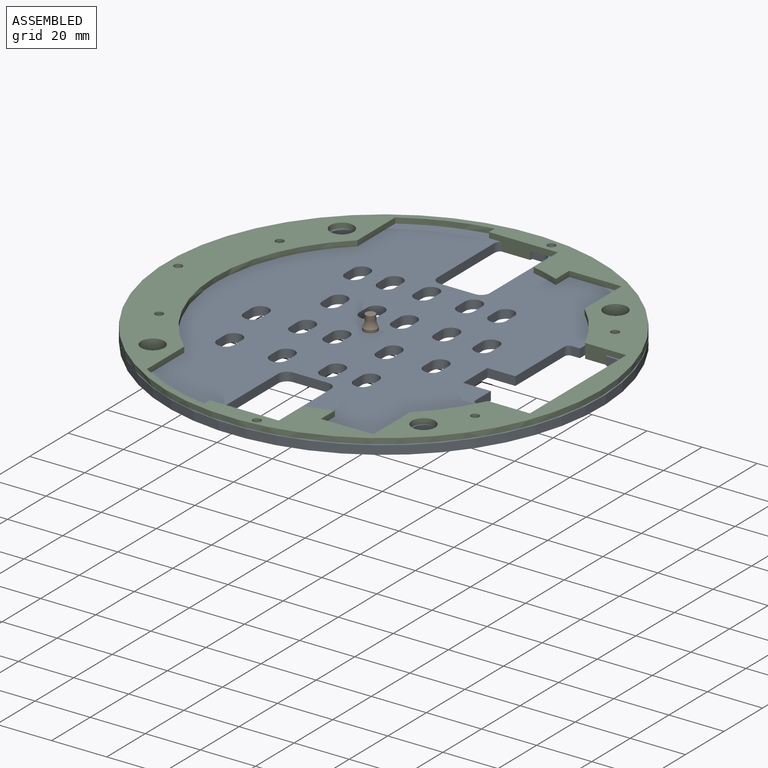
[diagram: assembled view]
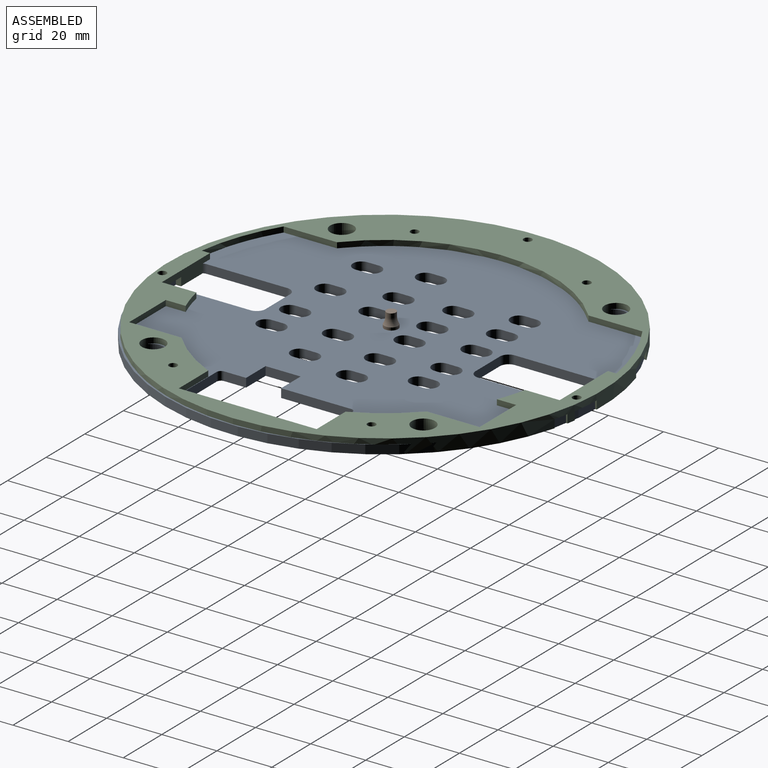
[diagram: assembled view, second angle]
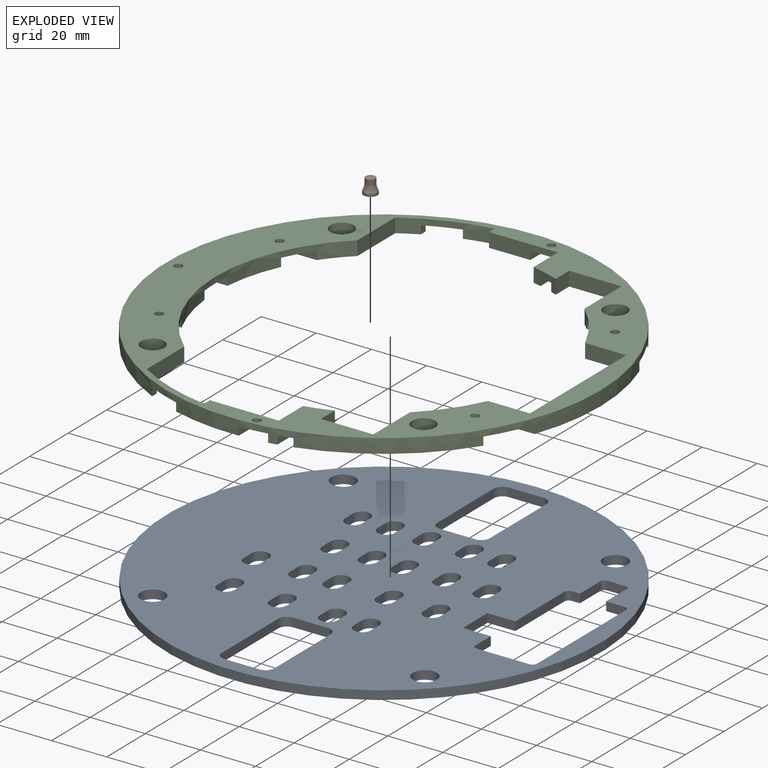
[diagram: exploded view]
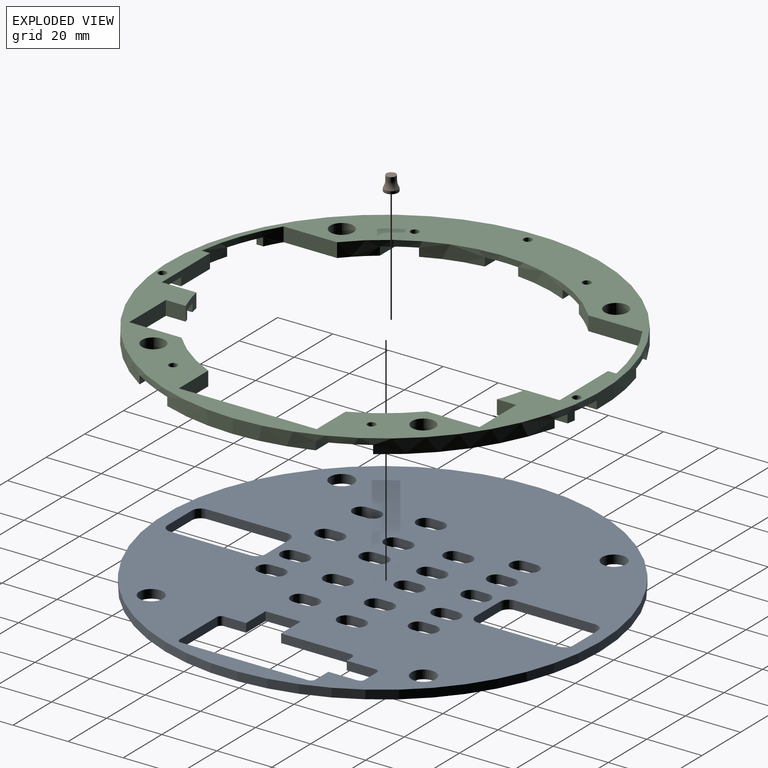
[diagram: exploded view, second angle]
ASSEMBLY  parts=3 mates=2
PART A: 117 faces, bbox 157.5x3.2x157.5 mm
  f0: plane 7.99x3.18mm, normal (1,0,0), area 25.4mm2, adj f2,f3,f13,f116
  f1: plane 3.18x2.93mm, normal (0,0,-1), area 9.3mm2, adj f2,f3,f11,f33
  f2: plane 157.48x157.48mm, normal (0,1,0), area 15489.2mm2, adj f0,f1,f4,f5,f6,f7,f8,f9
  f3: plane 157.48x157.48mm, normal (0,-1,0), area 15489.2mm2, adj f0,f1,f4,f5,f6,f7,f8,f9
  f4: cylinder r=78.74mm len=157.48mm, axis (0,-1,0), area 1570.8mm2, adj f2,f3
  f5: cylinder r=4.36mm len=8.71mm, axis (0,1,0), area 86.9mm2, adj f2,f3
  f6: cylinder r=4.36mm len=8.71mm, axis (0,1,0), area 86.9mm2, adj f2,f3
  f7: cylinder r=4.36mm len=8.71mm, axis (0,1,0), area 86.9mm2, adj f2,f3
  f8: cylinder r=4.36mm len=8.71mm, axis (0,1,0), area 86.9mm2, adj f2,f3
  f9: cylinder r=1.59mm len=3.18mm, axis (0,1,0), area 7.9mm2, adj f2,f3,f10,f16
  f10: plane 6.72x3.18mm, normal (0,0,-1), area 21.3mm2, adj f2,f3,f9,f34
  f11: cylinder r=1.59mm len=3.18mm, axis (0,1,0), area 7.9mm2, adj f1,f2,f3,f12
  f12: plane 25.41x3.18mm, normal (1,0,0), area 80.7mm2, adj f2,f3,f11,f115
  f13: cylinder r=1.59mm len=3.18mm, axis (0,1,0), area 7.9mm2, adj f0,f2,f3,f14
  f14: plane 19.18x3.18mm, normal (0,0,1), area 60.9mm2, adj f2,f3,f13,f15
  f15: cylinder r=1.59mm len=3.18mm, axis (0,1,0), area 7.9mm2, adj f2,f3,f14,f16
  f16: plane 46.1x3.18mm, normal (-1,0,0), area 146.4mm2, adj f2,f3,f9,f15
  f17: plane 29.21x3.18mm, normal (-1,0,0), area 92.7mm2, adj f2,f3,f22,f24
  f18: plane 12.7x3.18mm, normal (0,0,-1), area 40.3mm2, adj f2,f3,f21,f22
  f19: plane 29.21x3.18mm, normal (1,0,0), area 92.7mm2, adj f2,f3,f21,f23
  f20: plane 12.7x3.18mm, normal (0,0,1), area 40.3mm2, adj f2,f3,f23,f24
  f21: cylinder r=3.17mm len=3.18mm, axis (0,-1,0), area 15.8mm2, adj f2,f3,f18,f19
  f22: cylinder r=3.17mm len=3.18mm, axis (0,-1,0), area 15.8mm2, adj f2,f3,f17,f18
  f23: cylinder r=3.17mm len=3.18mm, axis (0,-1,0), area 15.8mm2, adj f2,f3,f19,f20
  f24: cylinder r=3.17mm len=3.18mm, axis (0,-1,0), area 15.8mm2, adj f2,f3,f17,f20
  f25: plane 29.21x3.18mm, normal (-1,0,0), area 92.7mm2, adj f2,f3,f30,f32
  f26: plane 12.7x3.18mm, normal (0,0,-1), area 40.3mm2, adj f2,f3,f31,f32
  f27: plane 29.21x3.18mm, normal (1,0,0), area 92.7mm2, adj f2,f3,f29,f31
  f28: plane 12.7x3.18mm, normal (0,0,1), area 40.3mm2, adj f2,f3,f29,f30
  f29: cylinder r=3.17mm len=3.18mm, axis (0,-1,0), area 15.8mm2, adj f2,f3,f27,f28
  f30: cylinder r=3.17mm len=3.18mm, axis (0,-1,0), area 15.8mm2, adj f2,f3,f25,f28
  f31: cylinder r=3.17mm len=3.18mm, axis (0,-1,0), area 15.8mm2, adj f2,f3,f26,f27
  f32: cylinder r=3.17mm len=3.18mm, axis (0,-1,0), area 15.8mm2, adj f2,f3,f25,f26
  f33: plane 10.54x3.18mm, normal (1,0,0), area 33.5mm2, adj f1,f2,f3,f37
  f34: plane 10.54x3.18mm, normal (-1,0,0), area 33.5mm2, adj f2,f3,f10,f35
  f35: cylinder r=1.52mm len=3.18mm, axis (0,1,0), area 7.6mm2, adj f2,f3,f34,f36
  f36: plane 6.48x3.18mm, normal (0,0,-1), area 20.6mm2, adj f2,f3,f35,f37
  f37: cylinder r=1.52mm len=3.18mm, axis (0,1,0), area 7.6mm2, adj f2,f3,f33,f36
  f38: cylinder r=3.12mm len=6.25mm, axis (0,1,0), area 31.2mm2, adj f2,f3,f39,f41
  f39: plane 4.11x3.18mm, normal (-1,0,0), area 13.1mm2, adj f2,f3,f38,f40
  f40: cylinder r=3.12mm len=6.25mm, axis (0,1,0), area 31.2mm2, adj f2,f3,f39,f41
  f41: plane 4.11x3.18mm, normal (1,0,0), area 13.1mm2, adj f2,f3,f38,f40
  f42: cylinder r=3.12mm len=6.25mm, axis (0,1,0), area 31.2mm2, adj f2,f3,f43,f45
  f43: plane 4.11x3.18mm, normal (-1,0,0), area 13.1mm2, adj f2,f3,f42,f44
  f44: cylinder r=3.12mm len=6.25mm, axis (0,1,0), area 31.2mm2, adj f2,f3,f43,f45
  f45: plane 4.11x3.18mm, normal (1,0,0), area 13.1mm2, adj f2,f3,f42,f44
  f46: cylinder r=3.12mm len=6.25mm, axis (0,1,0), area 31.2mm2, adj f2,f3,f47,f49
  f47: plane 4.12x3.18mm, normal (-1,0,0), area 13.1mm2, adj f2,f3,f46,f48
  f48: cylinder r=3.12mm len=6.25mm, axis (0,1,0), area 31.2mm2, adj f2,f3,f47,f49
  f49: plane 4.12x3.18mm, normal (1,0,0), area 13.1mm2, adj f2,f3,f46,f48
  f50: cylinder r=3.12mm len=6.25mm, axis (0,1,0), area 31.2mm2, adj f2,f3,f51,f53
  f51: plane 4.12x3.18mm, normal (-1,0,0), area 13.1mm2, adj f2,f3,f50,f52
  f52: cylinder r=3.12mm len=6.25mm, axis (0,1,0), area 31.2mm2, adj f2,f3,f51,f53
  f53: plane 4.12x3.18mm, normal (1,0,0), area 13.1mm2, adj f2,f3,f50,f52
  f54: cylinder r=3.12mm len=6.25mm, axis (0,1,0), area 31.2mm2, adj f2,f3,f55,f57
  f55: plane 4.11x3.18mm, normal (-1,0,0), area 13.1mm2, adj f2,f3,f54,f56
  f56: cylinder r=3.12mm len=6.25mm, axis (0,1,0), area 31.2mm2, adj f2,f3,f55,f57
  f57: plane 4.11x3.18mm, normal (1,0,0), area 13.1mm2, adj f2,f3,f54,f56
  f58: cylinder r=3.12mm len=6.25mm, axis (0,1,0), area 31.2mm2, adj f2,f3,f59,f61
  f59: plane 4.11x3.18mm, normal (-1,0,0), area 13.1mm2, adj f2,f3,f58,f60
  f60: cylinder r=3.12mm len=6.25mm, axis (0,1,0), area 31.2mm2, adj f2,f3,f59,f61
  f61: plane 4.11x3.18mm, normal (1,0,0), area 13.1mm2, adj f2,f3,f58,f60
  f62: cylinder r=3.12mm len=6.25mm, axis (0,1,0), area 31.2mm2, adj f2,f3,f63,f65
  f63: plane 4.11x3.18mm, normal (-1,0,0), area 13.1mm2, adj f2,f3,f62,f64
  f64: cylinder r=3.12mm len=6.25mm, axis (0,1,0), area 31.2mm2, adj f2,f3,f63,f65
  f65: plane 4.11x3.18mm, normal (1,0,0), area 13.1mm2, adj f2,f3,f62,f64
  f66: cylinder r=3.12mm len=6.25mm, axis (0,1,0), area 31.2mm2, adj f2,f3,f67,f69
  f67: plane 4.12x3.18mm, normal (-1,0,0), area 13.1mm2, adj f2,f3,f66,f68
  f68: cylinder r=3.12mm len=6.25mm, axis (0,1,0), area 31.2mm2, adj f2,f3,f67,f69
  f69: plane 4.12x3.18mm, normal (1,0,0), area 13.1mm2, adj f2,f3,f66,f68
  f70: cylinder r=3.12mm len=6.25mm, axis (0,1,0), area 31.2mm2, adj f2,f3,f71,f73
  f71: plane 4.12x3.18mm, normal (-1,0,0), area 13.1mm2, adj f2,f3,f70,f72
  f72: cylinder r=3.12mm len=6.25mm, axis (0,1,0), area 31.2mm2, adj f2,f3,f71,f73
  f73: plane 4.12x3.18mm, normal (1,0,0), area 13.1mm2, adj f2,f3,f70,f72
  f74: cylinder r=3.12mm len=6.25mm, axis (0,1,0), area 31.2mm2, adj f2,f3,f75,f77
  f75: plane 4.12x3.18mm, normal (-1,0,0), area 13.1mm2, adj f2,f3,f74,f76
  f76: cylinder r=3.12mm len=6.25mm, axis (0,1,0), area 31.2mm2, adj f2,f3,f75,f77
  f77: plane 4.12x3.18mm, normal (1,0,0), area 13.1mm2, adj f2,f3,f74,f76
  f78: cylinder r=3.12mm len=6.25mm, axis (0,1,0), area 31.2mm2, adj f2,f3,f79,f81
  f79: plane 4.11x3.18mm, normal (-1,0,0), area 13.1mm2, adj f2,f3,f78,f80
  f80: cylinder r=3.12mm len=6.25mm, axis (0,1,0), area 31.2mm2, adj f2,f3,f79,f81
  f81: plane 4.11x3.18mm, normal (1,0,0), area 13.1mm2, adj f2,f3,f78,f80
  f82: cylinder r=3.12mm len=6.25mm, axis (0,1,0), area 31.2mm2, adj f2,f3,f83,f85
  f83: plane 4.11x3.18mm, normal (-1,0,0), area 13.1mm2, adj f2,f3,f82,f84
  f84: cylinder r=3.12mm len=6.25mm, axis (0,1,0), area 31.2mm2, adj f2,f3,f83,f85
  f85: plane 4.11x3.18mm, normal (1,0,0), area 13.1mm2, adj f2,f3,f82,f84
  f86: cylinder r=3.12mm len=6.25mm, axis (0,1,0), area 31.2mm2, adj f2,f3,f87,f89
  f87: plane 4.12x3.18mm, normal (-1,0,0), area 13.1mm2, adj f2,f3,f86,f88
  f88: cylinder r=3.12mm len=6.25mm, axis (0,1,0), area 31.2mm2, adj f2,f3,f87,f89
  f89: plane 4.12x3.18mm, normal (1,0,0), area 13.1mm2, adj f2,f3,f86,f88
  f90: cylinder r=3.12mm len=6.25mm, axis (0,1,0), area 31.2mm2, adj f2,f3,f91,f93
  f91: plane 4.11x3.18mm, normal (-1,0,0), area 13.1mm2, adj f2,f3,f90,f92
  f92: cylinder r=3.12mm len=6.25mm, axis (0,1,0), area 31.2mm2, adj f2,f3,f91,f93
  f93: plane 4.11x3.18mm, normal (1,0,0), area 13.1mm2, adj f2,f3,f90,f92
  f94: cylinder r=3.12mm len=6.25mm, axis (0,1,0), area 31.2mm2, adj f2,f3,f95,f97
  f95: plane 4.11x3.18mm, normal (-1,0,0), area 13.1mm2, adj f2,f3,f94,f96
  f96: cylinder r=3.12mm len=6.25mm, axis (0,1,0), area 31.2mm2, adj f2,f3,f95,f97
  f97: plane 4.11x3.18mm, normal (1,0,0), area 13.1mm2, adj f2,f3,f94,f96
  f98: cylinder r=3.12mm len=6.25mm, axis (0,1,0), area 31.2mm2, adj f2,f3,f99,f101
  f99: plane 4.12x3.18mm, normal (-1,0,0), area 13.1mm2, adj f2,f3,f98,f100
  f100: cylinder r=3.12mm len=6.25mm, axis (0,1,0), area 31.2mm2, adj f2,f3,f99,f101
  f101: plane 4.12x3.18mm, normal (1,0,0), area 13.1mm2, adj f2,f3,f98,f100
  f102: cylinder r=3.12mm len=6.25mm, axis (0,1,0), area 31.2mm2, adj f2,f3,f103,f105
  f103: plane 4.12x3.18mm, normal (-1,0,0), area 13.1mm2, adj f2,f3,f102,f104
  f104: cylinder r=3.12mm len=6.25mm, axis (0,1,0), area 31.2mm2, adj f2,f3,f103,f105
  f105: plane 4.12x3.18mm, normal (1,0,0), area 13.1mm2, adj f2,f3,f102,f104
  f106: cylinder r=3.12mm len=6.25mm, axis (0,1,0), area 31.2mm2, adj f2,f3,f107,f109
  f107: plane 4.11x3.18mm, normal (-1,0,0), area 13.1mm2, adj f2,f3,f106,f108
  f108: cylinder r=3.12mm len=6.25mm, axis (0,1,0), area 31.2mm2, adj f2,f3,f107,f109
  f109: plane 4.11x3.18mm, normal (1,0,0), area 13.1mm2, adj f2,f3,f106,f108
  f110: cylinder r=3.12mm len=6.25mm, axis (0,1,0), area 31.2mm2, adj f2,f3,f111,f113
  f111: plane 4.12x3.18mm, normal (-1,0,0), area 13.1mm2, adj f2,f3,f110,f112
  f112: cylinder r=3.12mm len=6.25mm, axis (0,1,0), area 31.2mm2, adj f2,f3,f111,f113
  f113: plane 4.12x3.18mm, normal (1,0,0), area 13.1mm2, adj f2,f3,f110,f112
  f114: plane 12.7x3.18mm, normal (1,0,0), area 40.3mm2, adj f2,f3,f115,f116
  f115: plane 10.11x3.18mm, normal (0,0,-1), area 32.1mm2, adj f2,f3,f12,f114
  f116: plane 10.11x3.18mm, normal (0,0,1), area 32.1mm2, adj f0,f2,f3,f114
PART B: 5 faces, bbox 6.9x6.9x7.2 mm
  f0: cylinder r=2.5mm len=5mm, axis (0,0,-1), area 15.7mm2, adj f1,f4
  f1: plane 5x5mm, normal (0,0,-1), area 19.6mm2, adj f0
  f2: cylinder r=1.75mm len=3.5mm, axis (0,0,-1), area 17.9mm2, adj f3,f4
  f3: plane 3.5x3.5mm, normal (0,0,1), area 9.6mm2, adj f2
  f4: torus R=6.75mm, axis (0,0,-1), area 34.9mm2, adj f0,f2
PART C: 79 faces, bbox 157.5x157.5x5.2 mm
  f0: cylinder r=61mm len=90.78mm, axis (0,0,-1), area 423.3mm2, adj f13,f14,f15,f16,f17,f33,f39,f47
  f1: cylinder r=78.33mm len=28.73mm, axis (0,0,-1), area 120.7mm2, adj f12,f16,f17,f18,f39,f44,f45,f46
  f2: cylinder r=61mm len=10.16mm, axis (0,0,-1), area 39.3mm2, adj f8,f9,f20,f21,f39,f63,f64,f65
  f3: cylinder r=61mm len=19.71mm, axis (0,0,-1), area 68.8mm2, adj f7,f8,f23,f24,f39,f66,f67,f68
  f4: cylinder r=61mm len=19.81mm, axis (0,0,-1), area 70.2mm2, adj f7,f11,f26,f27,f39,f69,f70,f71
  f5: cylinder r=61mm len=9.59mm, axis (0,0,-1), area 36.1mm2, adj f10,f11,f29,f30,f39,f60,f61,f62
  f6: cylinder r=73.76mm len=27.9mm, axis (0,0,-1), area 115.8mm2, adj f13,f32,f33,f39,f40,f41,f42,f43
  f7: plane 54x24.18mm, normal (0,0,-1), area 409.4mm2, adj f3,f4,f24,f25,f26,f38,f67,f70
  f8: plane 45.83x33.76mm, normal (0,0,-1), area 481.4mm2, adj f2,f3,f21,f22,f23,f37,f38,f64
  f9: plane 18.76x3mm, normal (0,0,-1), area 54.4mm2, adj f2,f20,f38,f63
  f10: plane 18.74x3mm, normal (0,0,-1), area 54.3mm2, adj f5,f30,f38,f60
  f11: plane 45.61x33.25mm, normal (0,0,-1), area 470.6mm2, adj f4,f5,f27,f28,f29,f34,f38,f61
  f12: plane 25x6.5mm, normal (0,0,-1), area 118.4mm2, adj f1,f18,f19,f38,f45,f56
  f13: plane 35.42x34.56mm, normal (0,0,-1), area 464.2mm2, adj f0,f6,f33,f35,f38,f41,f54
  f14: plane 23.42x20mm, normal (0,0,-1), area 366.5mm2, adj f0,f38,f50,f53
  f15: plane 23.24x20mm, normal (0,0,-1), area 366mm2, adj f0,f38,f48,f51
  f16: plane 35.77x35.06mm, normal (0,0,-1), area 460.1mm2, adj f0,f1,f17,f36,f38,f44,f47
  f17: plane 19.59x5.17mm, normal (1,0,0), area 101.3mm2, adj f0,f1,f16,f39
  f18: plane 5.17x3.02mm, normal (-1,0,0), area 15.6mm2, adj f1,f12,f19,f39
  f19: plane 25x5.17mm, normal (0,-1,0), area 99.2mm2, adj f12,f18,f20,f39,f56,f57
  f20: plane 18.04x5.17mm, normal (-1,0,0), area 81.4mm2, adj f2,f9,f19,f38,f39,f57
  f21: plane 7x5.17mm, normal (1,0,0), area 36.2mm2, adj f2,f8,f22,f39
  f22: plane 19x5.17mm, normal (0,-1,0), area 98.2mm2, adj f8,f21,f23,f39
  f23: plane 19.15x5.17mm, normal (-1,0,0), area 99mm2, adj f3,f8,f22,f39
  f24: plane 14.98x5.17mm, normal (0,-1,0), area 77.4mm2, adj f3,f7,f25,f39
  f25: plane 50x5.17mm, normal (-1,0,0), area 258.5mm2, adj f7,f24,f26,f39
  f26: plane 15.22x5.17mm, normal (0,1,0), area 78.7mm2, adj f4,f7,f25,f39
  f27: plane 18.98x5.17mm, normal (-1,0,0), area 98.1mm2, adj f4,f11,f28,f39
  f28: plane 19x5.17mm, normal (0,1,0), area 98.2mm2, adj f11,f27,f29,f39
  f29: plane 7.2x5.17mm, normal (1,0,0), area 37.2mm2, adj f5,f11,f28,f39
  f30: plane 18.04x5.17mm, normal (-1,0,0), area 81.3mm2, adj f5,f10,f31,f38,f39,f59
  f31: plane 25x5.17mm, normal (0,1,0), area 99.2mm2, adj f30,f32,f39,f40,f58,f59
  f32: plane 5.17x3mm, normal (-1,0,0), area 15.5mm2, adj f6,f31,f39,f40
  f33: plane 19.38x5.17mm, normal (1,0,0), area 100.2mm2, adj f0,f6,f13,f39
  f34: cylinder r=4.21mm len=8.42mm, axis (0,0,-1), area 136.7mm2, adj f11,f39
  f35: cylinder r=4.21mm len=8.42mm, axis (0,0,-1), area 136.7mm2, adj f13,f39
  f36: cylinder r=4.21mm len=8.42mm, axis (0,0,-1), area 136.7mm2, adj f16,f39
  f37: cylinder r=4.21mm len=8.42mm, axis (0,0,-1), area 136.7mm2, adj f8,f39
  f38: cylinder r=78.74mm len=157.48mm, axis (0,0,-1), area 2183.9mm2, adj f7,f8,f9,f10,f11,f12,f13,f14
  f39: plane 157.48x157.48mm, normal (0,0,1), area 4928.7mm2, adj f0,f1,f2,f3,f4,f5,f6,f17
  f40: plane 25x6.5mm, normal (0,0,-1), area 117.8mm2, adj f6,f31,f32,f38,f42,f58
  f41: plane 3x2.42mm, normal (1,0,0), area 7.3mm2, adj f6,f13,f38,f43
  f42: plane 3x2.41mm, normal (-1,0,0), area 7.2mm2, adj f6,f38,f40,f43
  f43: plane 12x7.1mm, normal (0,0,-1), area 28.8mm2, adj f6,f38,f41,f42
  f44: plane 3x2.49mm, normal (1,0,0), area 7.5mm2, adj f1,f16,f38,f46
  f45: plane 3x2.49mm, normal (-1,0,0), area 7.5mm2, adj f1,f12,f38,f46
  f46: plane 12x7.15mm, normal (0,0,-1), area 29.9mm2, adj f1,f38,f44,f45
  f47: plane 20.74x3mm, normal (0,-1,0), area 62.2mm2, adj f0,f16,f38,f49
  f48: plane 19.12x3mm, normal (0,1,0), area 57.3mm2, adj f0,f15,f38,f49
  f49: plane 25x10mm, normal (0,0,-1), area 191.4mm2, adj f0,f38,f47,f48,f76
  f50: plane 17.81x3mm, normal (0,1,0), area 53.4mm2, adj f0,f14,f38,f52
  f51: plane 17.8x3mm, normal (0,-1,0), area 53.4mm2, adj f0,f15,f38,f52
  f52: plane 18.06x12mm, normal (0,0,-1), area 206.1mm2, adj f0,f38,f50,f51,f78
  f53: plane 19.17x3mm, normal (0,-1,0), area 57.5mm2, adj f0,f14,f38,f55
  f54: plane 20.83x3mm, normal (0,1,0), area 62.5mm2, adj f0,f13,f38,f55
  f55: plane 25.16x10mm, normal (0,0,-1), area 192.1mm2, adj f0,f38,f53,f54,f77
  f56: plane 6.46x3mm, normal (1,0,0), area 19.4mm2, adj f12,f19,f38,f57
  f57: plane 10x6.46mm, normal (0,0,-1), area 53.7mm2, adj f19,f20,f38,f56,f75
  f58: plane 6.46x3mm, normal (1,0,0), area 19.4mm2, adj f31,f38,f40,f59
  f59: plane 10x6.46mm, normal (0,0,-1), area 53.8mm2, adj f30,f31,f38,f58,f74
  f60: plane 18.2x3mm, normal (1,0,0), area 54.6mm2, adj f5,f10,f38,f62
  f61: plane 18.57x3mm, normal (-1,0,0), area 55.7mm2, adj f5,f11,f38,f62
  f62: plane 19.75x5mm, normal (0,0,-1), area 91.9mm2, adj f5,f38,f60,f61
  f63: plane 18.21x3mm, normal (1,0,0), area 54.6mm2, adj f2,f9,f38,f65
  f64: plane 18.58x3mm, normal (-1,0,0), area 55.8mm2, adj f2,f8,f38,f65
  f65: plane 19.77x5mm, normal (0,0,-1), area 91.9mm2, adj f2,f38,f63,f64
  f66: plane 22.44x3mm, normal (0,-1,0), area 67.3mm2, adj f3,f8,f38,f68
  f67: plane 19.23x3mm, normal (0,1,0), area 57.7mm2, adj f3,f7,f38,f68
  f68: plane 30.04x15.5mm, normal (0,0,-1), area 312.1mm2, adj f3,f38,f66,f67,f72
  f69: plane 22.62x3mm, normal (0,1,0), area 67.9mm2, adj f4,f11,f38,f71
  f70: plane 19.3x3mm, normal (0,-1,0), area 57.9mm2, adj f4,f7,f38,f71
  f71: plane 30.38x15.5mm, normal (0,0,-1), area 313.8mm2, adj f4,f38,f69,f70,f73
  f72: cylinder r=1.5mm len=3mm, axis (0,0,-1), area 20.5mm2, adj f39,f68
  f73: cylinder r=1.5mm len=3mm, axis (0,0,-1), area 20.5mm2, adj f39,f71
  f74: cylinder r=1.5mm len=3mm, axis (0,0,-1), area 20.5mm2, adj f39,f59
  f75: cylinder r=1.5mm len=3mm, axis (0,0,-1), area 20.5mm2, adj f39,f57
  f76: cylinder r=1.5mm len=3mm, axis (0,0,-1), area 20.5mm2, adj f39,f49
  f77: cylinder r=1.5mm len=3mm, axis (0,0,-1), area 20.5mm2, adj f39,f55
  f78: cylinder r=1.5mm len=3mm, axis (0,0,-1), area 20.5mm2, adj f39,f52
PLACE A rot(axis=(-1,0,0),90deg) t=(3.59,-1.34,-4)mm
PLACE B t=(-1.19,-1.6,-4)mm
PLACE C t=(3.23,-1.12,-7.18)mm
MATE fastened C.f35 <-> A.f8  axis (0,0,-1) through (-45.8,-50.73,-7.18)mm
MATE planar A.f3 <-> B.f0  axis (0,0,1) through (-1.19,-1.6,-4)mm
